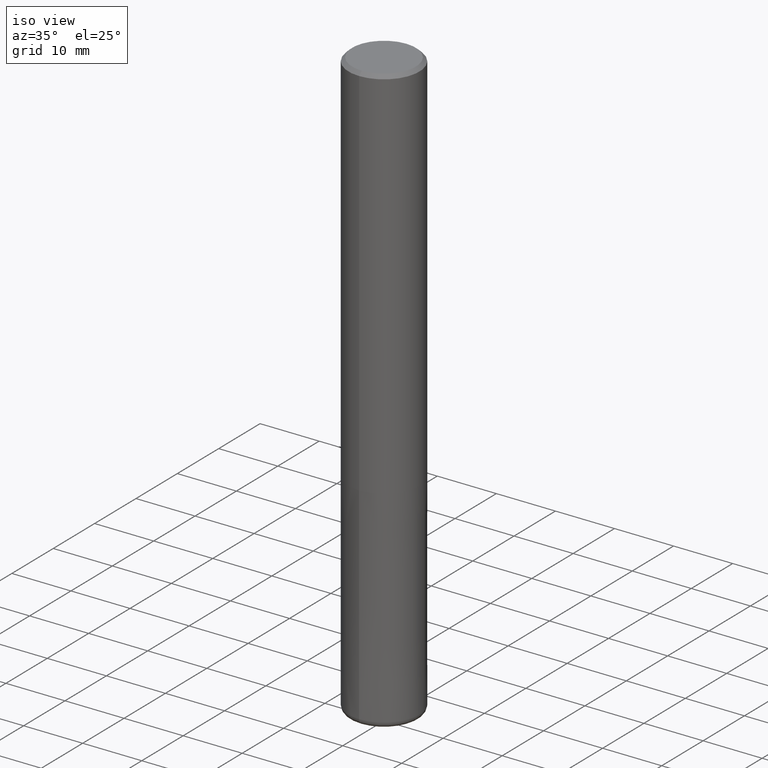
[diagram: clean part render]
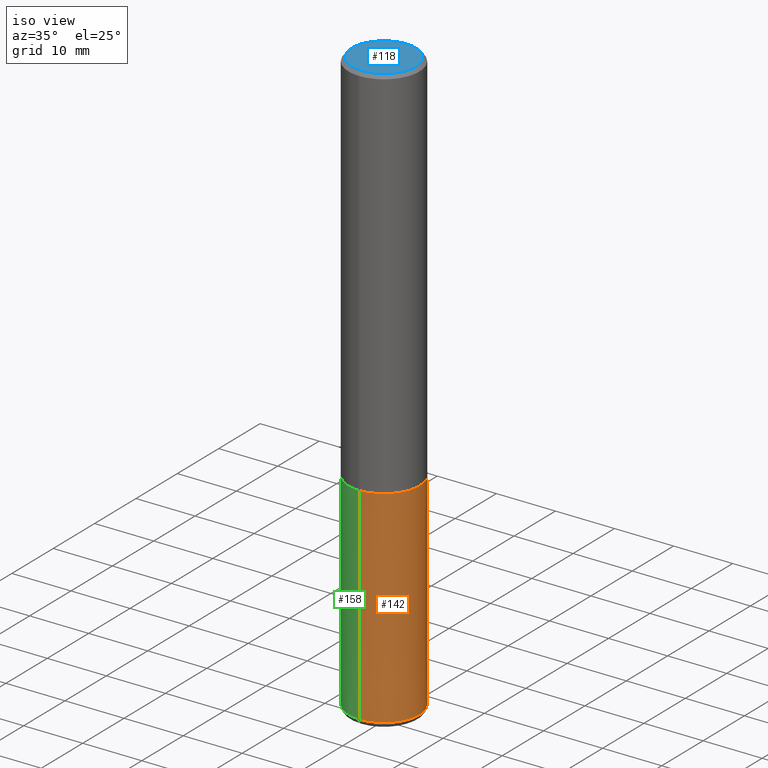
[diagram: same view with three faces highlighted in distinct colors, each labeled with its STEP entity id]
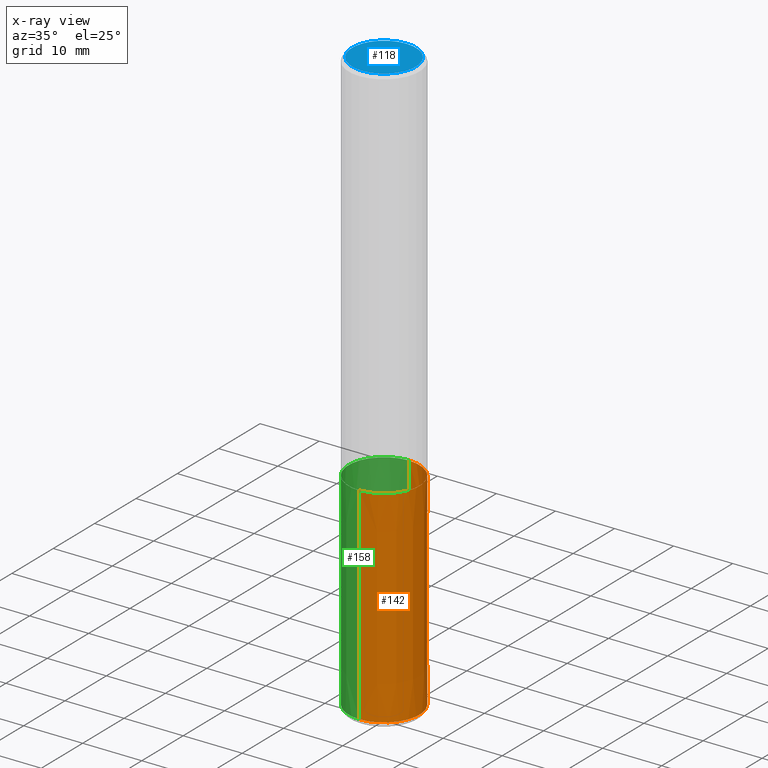
[diagram: x-ray of the same camera — body ghosted, the three highlighted faces saturated]
A machine part, iso view with three faces highlighted in distinct colors.
The next image is the same camera in x-ray (body ghosted, the three faces saturated) — at least one of them is partly hidden behind the body in this view.
Their STEP definitions:

[orange] entity #142 — the highlighted conical surface has half-angle 0 deg.
#108=VERTEX_POINT('',#270);
#128=VERTEX_POINT('',#295);
#140=VERTEX_POINT('',#308);
#142=ADVANCED_FACE('',(#310),#311,.T.);
#152=VERTEX_POINT('',#321);
#166=EDGE_CURVE('',#152,#108,#338,.T.);
#172=EDGE_CURVE('',#140,#108,#344,.T.);
#202=EDGE_CURVE('',#152,#128,#379,.T.);
#220=EDGE_CURVE('',#128,#140,#401,.T.);
#270=CARTESIAN_POINT('',(7.34751566229888E-016,-5.9999,-64.0));
#295=CARTESIAN_POINT('',(0.0,6.0,-99.0));
#308=CARTESIAN_POINT('',(7.34763812293427E-016,-6.0,-99.0));
#310=FACE_OUTER_BOUND('',#488,.T.);
#311=CONICAL_SURFACE('',#489,5.99995,2.85714285712842E-006);
#321=CARTESIAN_POINT('',(0.0,5.9999,-64.0));
#338=CIRCLE('',#526,5.9999);
#344=LINE('',#533,#534);
#379=LINE('',#577,#578);
#401=CIRCLE('',#604,6.0);
#488=EDGE_LOOP('',(#709,#710,#711,#712));
#489=AXIS2_PLACEMENT_3D('',#713,#714,#715);
#526=AXIS2_PLACEMENT_3D('',#744,#745,#746);
#533=CARTESIAN_POINT('',(7.34757689261658E-016,-5.99995,-81.5));
#534=VECTOR('',#751,1.0);
#577=CARTESIAN_POINT('',(-7.34757689261657E-016,5.99995,-81.5));
#578=VECTOR('',#793,1.0);
#604=AXIS2_PLACEMENT_3D('',#822,#823,#824);
#709=ORIENTED_EDGE('',*,*,#202,.F.);
#710=ORIENTED_EDGE('',*,*,#166,.T.);
#711=ORIENTED_EDGE('',*,*,#172,.F.);
#712=ORIENTED_EDGE('',*,*,#220,.F.);
#713=CARTESIAN_POINT('',(0.0,0.0,-81.5));
#714=DIRECTION('',(0.0,-0.0,-1.0));
#715=DIRECTION('',(0.0,1.0,0.0));
#744=CARTESIAN_POINT('',(0.0,0.0,-64.0));
#745=DIRECTION('',(0.0,0.0,-1.0));
#746=DIRECTION('',(0.0,1.0,0.0));
#751=DIRECTION('',(-3.49887529661293E-022,2.85714285712454E-006,0.999999999995918));
#793=DIRECTION('',(-3.49887529661293E-022,2.85714285712454E-006,-0.999999999995918));
#822=CARTESIAN_POINT('',(0.0,0.0,-99.0));
#823=DIRECTION('',(0.0,0.0,-1.0));
#824=DIRECTION('',(0.0,1.0,0.0));

[blue] entity #118 — the highlighted planar face has unit normal (-0, 0, 1).
#118=ADVANCED_FACE('',(#282),#283,.T.);
#120=EDGE_CURVE('',#154,#194,#285,.T.);
#154=VERTEX_POINT('',#323);
#194=VERTEX_POINT('',#370);
#238=EDGE_CURVE('',#194,#154,#419,.T.);
#282=FACE_OUTER_BOUND('',#457,.T.);
#283=PLANE('',#458);
#285=CIRCLE('',#461,5.4);
#323=CARTESIAN_POINT('',(0.0,5.4,0.0));
#370=CARTESIAN_POINT('',(6.61287431064084E-016,-5.4,0.0));
#419=CIRCLE('',#629,5.4);
#457=EDGE_LOOP('',(#671,#672));
#458=AXIS2_PLACEMENT_3D('',#673,#674,#675);
#461=AXIS2_PLACEMENT_3D('',#676,#677,#678);
#629=AXIS2_PLACEMENT_3D('',#838,#839,#840);
#671=ORIENTED_EDGE('',*,*,#120,.F.);
#672=ORIENTED_EDGE('',*,*,#238,.F.);
#673=CARTESIAN_POINT('',(0.0,2.7,0.0));
#674=DIRECTION('',(-0.0,0.0,1.0));
#675=DIRECTION('',(0.0,-1.0,0.0));
#676=CARTESIAN_POINT('',(0.0,0.0,0.0));
#677=DIRECTION('',(0.0,0.0,-1.0));
#678=DIRECTION('',(0.0,1.0,0.0));
#838=CARTESIAN_POINT('',(0.0,0.0,0.0));
#839=DIRECTION('',(0.0,0.0,-1.0));
#840=DIRECTION('',(0.0,1.0,0.0));

[green] entity #158 — the highlighted conical surface has half-angle 0 deg.
#104=EDGE_CURVE('',#108,#152,#265,.T.);
#108=VERTEX_POINT('',#270);
#128=VERTEX_POINT('',#295);
#140=VERTEX_POINT('',#308);
#152=VERTEX_POINT('',#321);
#158=ADVANCED_FACE('',(#327),#328,.T.);
#172=EDGE_CURVE('',#140,#108,#344,.T.);
#202=EDGE_CURVE('',#152,#128,#379,.T.);
#234=EDGE_CURVE('',#140,#128,#415,.T.);
#265=CIRCLE('',#439,5.9999);
#270=CARTESIAN_POINT('',(7.34751566229888E-016,-5.9999,-64.0));
#295=CARTESIAN_POINT('',(0.0,6.0,-99.0));
#308=CARTESIAN_POINT('',(7.34763812293427E-016,-6.0,-99.0));
#321=CARTESIAN_POINT('',(0.0,5.9999,-64.0));
#327=FACE_OUTER_BOUND('',#511,.T.);
#328=CONICAL_SURFACE('',#512,5.99995,2.85714285712842E-006);
#344=LINE('',#533,#534);
#379=LINE('',#577,#578);
#415=CIRCLE('',#624,6.0);
#439=AXIS2_PLACEMENT_3D('',#640,#641,#642);
#511=EDGE_LOOP('',(#725,#726,#727,#728));
#512=AXIS2_PLACEMENT_3D('',#729,#730,#731);
#533=CARTESIAN_POINT('',(7.34757689261658E-016,-5.99995,-81.5));
#534=VECTOR('',#751,1.0);
#577=CARTESIAN_POINT('',(-7.34757689261657E-016,5.99995,-81.5));
#578=VECTOR('',#793,1.0);
#624=AXIS2_PLACEMENT_3D('',#835,#836,#837);
#640=CARTESIAN_POINT('',(0.0,0.0,-64.0));
#641=DIRECTION('',(0.0,0.0,-1.0));
#642=DIRECTION('',(0.0,1.0,0.0));
#725=ORIENTED_EDGE('',*,*,#202,.T.);
#726=ORIENTED_EDGE('',*,*,#234,.F.);
#727=ORIENTED_EDGE('',*,*,#172,.T.);
#728=ORIENTED_EDGE('',*,*,#104,.T.);
#729=CARTESIAN_POINT('',(0.0,0.0,-81.5));
#730=DIRECTION('',(0.0,-0.0,-1.0));
#731=DIRECTION('',(0.0,1.0,0.0));
#751=DIRECTION('',(-3.49887529661293E-022,2.85714285712454E-006,0.999999999995918));
#793=DIRECTION('',(-3.49887529661293E-022,2.85714285712454E-006,-0.999999999995918));
#835=CARTESIAN_POINT('',(0.0,0.0,-99.0));
#836=DIRECTION('',(0.0,0.0,-1.0));
#837=DIRECTION('',(0.0,1.0,0.0));